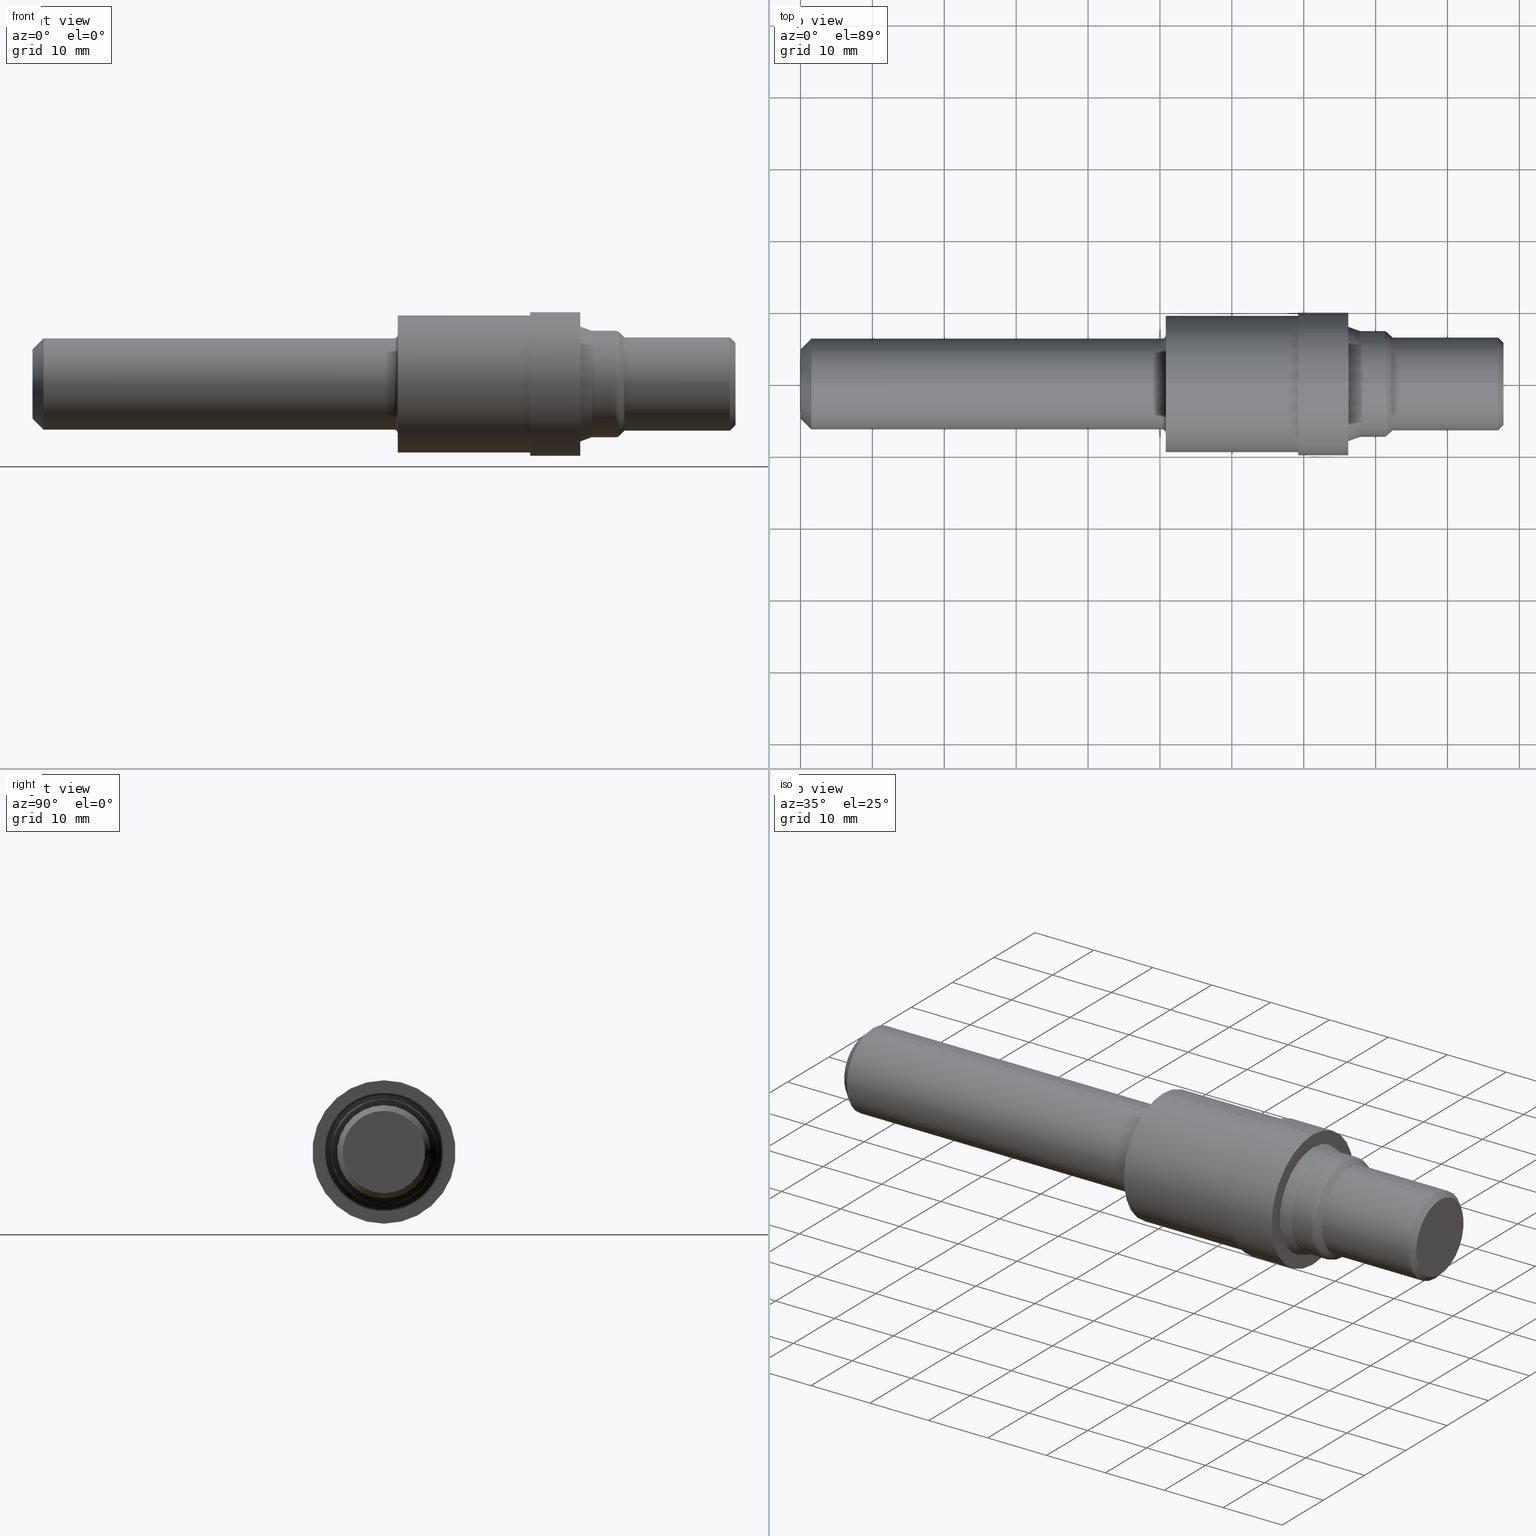
[diagram: canonical four-view strip — front | top / right | iso, engineering-drawing reading convention]
A machine part, canonical four-view strip (front | top / right | iso — engineering-drawing reading convention). The complete STEP part file that produces these views, byte-faithful:
ISO-10303-21;
HEADER;
FILE_DESCRIPTION (( 'STEP AP214' ),
    '1' );
FILE_NAME ('RPT-8 Solid Model.STEP',
    '2018-12-12T20:45:45',
    ( '' ),
    ( '' ),
    'SwSTEP 2.0',
    'SolidWorks 2018',
    '' );
FILE_SCHEMA (( 'AUTOMOTIVE_DESIGN' ));
ENDSEC;

DATA;
#1 = CONICAL_SURFACE ( 'NONE', #225, 0.2556499999999999884, 0.7853981633974528309 ) ;
#2 =( GEOMETRIC_REPRESENTATION_CONTEXT ( 3 ) GLOBAL_UNCERTAINTY_ASSIGNED_CONTEXT ( ( #572 ) ) GLOBAL_UNIT_ASSIGNED_CONTEXT ( ( #618, #619, #701 ) ) REPRESENTATION_CONTEXT ( 'NONE', 'WORKASPACE' ) );
#3 = ADVANCED_FACE ( 'NONE', ( #206 ), #17, .T. ) ;
#4 = CARTESIAN_POINT ( 'NONE',  ( 3.820000000000000284, 0.0000000000000000000, 0.0000000000000000000 ) ) ;
#5 = FILL_AREA_STYLE ('',( #286 ) ) ;
#6 = EDGE_CURVE ( 'NONE', #738, #306, #204, .T. ) ;
#7 = AXIS2_PLACEMENT_3D ( 'NONE', #464, #743, #715 ) ;
#8 = CARTESIAN_POINT ( 'NONE',  ( 0.0000000000000000000, 0.0000000000000000000, 0.3926499999999999990 ) ) ;
#9 = AXIS2_PLACEMENT_3D ( 'NONE', #249, #145, #134 ) ;
#10 = CONICAL_SURFACE ( 'NONE', #215, 0.2256499999999999340, 0.7853981633974500554 ) ;
#11 =( CONVERSION_BASED_UNIT ( 'INCH', #220 ) LENGTH_UNIT ( ) NAMED_UNIT ( #87 ) );
#12 = FACE_OUTER_BOUND ( 'NONE', #271, .T. ) ;
#13 = EDGE_CURVE ( 'NONE', #306, #738, #205, .T. ) ;
#14 = DIRECTION ( 'NONE',  ( 0.0000000000000000000, 0.0000000000000000000, 1.000000000000000000 ) ) ;
#15 = DIRECTION ( 'NONE',  ( 0.0000000000000000000, 0.0000000000000000000, 1.000000000000000000 ) ) ;
#16 = DIRECTION ( 'NONE',  ( -1.000000000000000000, -0.0000000000000000000, -0.0000000000000000000 ) ) ;
#17 = TOROIDAL_SURFACE ( 'NONE', #39, 0.2614000000000000212, 0.02999999999999991909 ) ;
#18 = ADVANCED_FACE ( 'NONE', ( #202 ), #190, .T. ) ;
#19 = TOROIDAL_SURFACE ( 'NONE', #210, 0.2614000000000000212, 0.02999999999999991909 ) ;
#20 = CONICAL_SURFACE ( 'NONE', #651, 0.2913999999999999924, 0.3577924966588383326 ) ;
#21 = CARTESIAN_POINT ( 'NONE',  ( 3.193073593128807008, 0.0000000000000000000, 0.0000000000000000000 ) ) ;
#22 = CYLINDRICAL_SURFACE ( 'NONE', #578, 0.2556499999999999884 ) ;
#23 = CARTESIAN_POINT ( 'NONE',  ( 3.000000000000000444, 0.0000000000000000000, 0.3926499999999999990 ) ) ;
#24 = ADVANCED_FACE ( 'NONE', ( #200 ), #390, .T. ) ;
#25 = ADVANCED_FACE ( 'NONE', ( #192 ), #184, .T. ) ;
#26 = CARTESIAN_POINT ( 'NONE',  ( 3.000000000000000444, 0.3926499999999999990, 0.0000000000000000000 ) ) ;
#27 = DIRECTION ( 'NONE',  ( 0.0000000000000000000, 0.0000000000000000000, 1.000000000000000000 ) ) ;
#28 = EDGE_CURVE ( 'NONE', #451, #674, #189, .T. ) ;
#29 = EDGE_CURVE ( 'NONE', #636, #583, #391, .T. ) ;
#30 = CIRCLE ( 'NONE', #411, 0.2826132034355963718 ) ;
#31 = CIRCLE ( 'NONE', #234, 0.2913999999999999924 ) ;
#32 = DIRECTION ( 'NONE',  ( 0.0000000000000000000, 0.0000000000000000000, 1.000000000000000000 ) ) ;
#33 = PLANE ( 'NONE',  #594 ) ;
#34 = CIRCLE ( 'NONE', #150, 0.3147677924678004002 ) ;
#35 = ORIENTED_EDGE ( 'NONE', *, *, #28, .T. ) ;
#36 = DIRECTION ( 'NONE',  ( 0.0000000000000000000, 0.0000000000000000000, 1.000000000000000000 ) ) ;
#37 = DIRECTION ( 'NONE',  ( -1.000000000000000000, -0.0000000000000000000, -0.0000000000000000000 ) ) ;
#38 = DIMENSIONAL_EXPONENTS ( 1.000000000000000000, 0.0000000000000000000, 0.0000000000000000000, 0.0000000000000000000, 0.0000000000000000000, 0.0000000000000000000, 0.0000000000000000000 ) ;
#39 = AXIS2_PLACEMENT_3D ( 'NONE', #21, #218, #335 ) ;
#40 = FACE_OUTER_BOUND ( 'NONE', #320, .T. ) ;
#41 = LINE ( 'NONE', #453, #47 ) ;
#42 = FACE_OUTER_BOUND ( 'NONE', #604, .T. ) ;
#43 = DIRECTION ( 'NONE',  ( 0.0000000000000000000, 0.0000000000000000000, -1.000000000000000000 ) ) ;
#44 = FACE_OUTER_BOUND ( 'NONE', #707, .T. ) ;
#45 = DIRECTION ( 'NONE',  ( -0.9366721892483974576, 0.0000000000000000000, 0.3502073812594680979 ) ) ;
#46 = CIRCLE ( 'NONE', #705, 0.2556499999999999884 ) ;
#47 = VECTOR ( 'NONE', #175, 39.37007874015748143 ) ;
#48 = FACE_OUTER_BOUND ( 'NONE', #537, .T. ) ;
#49 = LENGTH_MEASURE_WITH_UNIT ( LENGTH_MEASURE( 0.02539999999999999897 ), #107 );
#50 = DIRECTION ( 'NONE',  ( -0.0000000000000000000, 0.0000000000000000000, 1.000000000000000000 ) ) ;
#51 = CYLINDRICAL_SURFACE ( 'NONE', #653, 0.2498499999999999888 ) ;
#52 = FACE_OUTER_BOUND ( 'NONE', #473, .T. ) ;
#53 = APPLICATION_CONTEXT ( 'automotive_design' ) ;
#54 = LINE ( 'NONE', #354, #334 ) ;
#55 = CIRCLE ( 'NONE', #362, 0.01999999999999999001 ) ;
#56 = DIRECTION ( 'NONE',  ( -1.000000000000000000, -0.0000000000000000000, -0.0000000000000000000 ) ) ;
#57 = DIRECTION ( 'NONE',  ( 0.0000000000000000000, 0.0000000000000000000, 1.000000000000000000 ) ) ;
#58 = DIRECTION ( 'NONE',  ( -1.000000000000000000, -0.0000000000000000000, -0.0000000000000000000 ) ) ;
#59 = DIRECTION ( 'NONE',  ( 0.0000000000000000000, 0.0000000000000000000, 1.000000000000000000 ) ) ;
#60 = DIRECTION ( 'NONE',  ( 0.0000000000000000000, 0.0000000000000000000, 1.000000000000000000 ) ) ;
#61 = DIRECTION ( 'NONE',  ( -1.000000000000000000, -0.0000000000000000000, -0.0000000000000000000 ) ) ;
#62 = CIRCLE ( 'NONE', #7, 0.3926499999999999990 ) ;
#63 = CARTESIAN_POINT ( 'NONE',  ( 2.000000000000000000, 0.0000000000000000000, 0.0000000000000000000 ) ) ;
#64 = CARTESIAN_POINT ( 'NONE',  ( 2.725000000000000089, 0.0000000000000000000, 0.3750000000000000555 ) ) ;
#65 = VECTOR ( 'NONE', #454, 39.37007874015748143 ) ;
#66 = DIRECTION ( 'NONE',  ( 0.0000000000000000000, 0.0000000000000000000, 1.000000000000000000 ) ) ;
#67 = FACE_OUTER_BOUND ( 'NONE', #606, .T. ) ;
#68 = ADVANCED_FACE ( 'NONE', ( #380 ), #183, .F. ) ;
#69 = ADVANCED_FACE ( 'NONE', ( #174 ), #163, .T. ) ;
#70 =( GEOMETRIC_REPRESENTATION_CONTEXT ( 3 ) GLOBAL_UNCERTAINTY_ASSIGNED_CONTEXT ( ( #106 ) ) GLOBAL_UNIT_ASSIGNED_CONTEXT ( ( #630, #410, #130 ) ) REPRESENTATION_CONTEXT ( 'NONE', 'WORKASPACE' ) );
#71 = CARTESIAN_POINT ( 'NONE',  ( 0.05999999999999999778, 3.059780027669661931E-17, 0.2498499999999999888 ) ) ;
#72 = ADVANCED_FACE ( 'NONE', ( #182 ), #161, .T. ) ;
#73 = DIRECTION ( 'NONE',  ( 0.0000000000000000000, 0.0000000000000000000, 1.000000000000000000 ) ) ;
#74 = DIRECTION ( 'NONE',  ( -1.000000000000000000, -0.0000000000000000000, -0.0000000000000000000 ) ) ;
#75 = AXIS2_PLACEMENT_3D ( 'NONE', #118, #588, #186 ) ;
#76 = ADVANCED_FACE ( 'NONE', ( #171, #155 ), #33, .F. ) ;
#77 = CARTESIAN_POINT ( 'NONE',  ( 3.193073593128807008, 3.568620772715386493E-17, -0.2913999999999999369 ) ) ;
#78 = LINE ( 'NONE', #154, #65 ) ;
#79 = DIRECTION ( 'NONE',  ( 0.0000000000000000000, 0.0000000000000000000, -1.000000000000000000 ) ) ;
#80 = CIRCLE ( 'NONE', #673, 0.2498500000000000443 ) ;
#81 = CARTESIAN_POINT ( 'NONE',  ( 1.979999999999999982, 0.0000000000000000000, 0.0000000000000000000 ) ) ;
#82 = DIRECTION ( 'NONE',  ( 0.0000000000000000000, 0.0000000000000000000, -1.000000000000000000 ) ) ;
#83 = VECTOR ( 'NONE', #513, 39.37007874015748143 ) ;
#84 = DIRECTION ( 'NONE',  ( 0.0000000000000000000, 0.0000000000000000000, 1.000000000000000000 ) ) ;
#85 = AXIS2_PLACEMENT_3D ( 'NONE', #611, #561, #388 ) ;
#86 = LINE ( 'NONE', #104, #124 ) ;
#87 = DIMENSIONAL_EXPONENTS ( 1.000000000000000000, 0.0000000000000000000, 0.0000000000000000000, 0.0000000000000000000, 0.0000000000000000000, 0.0000000000000000000, 0.0000000000000000000 ) ;
#88 = EDGE_CURVE ( 'NONE', #738, #451, #153, .T. ) ;
#89 = DIRECTION ( 'NONE',  ( -1.000000000000000000, -0.0000000000000000000, -0.0000000000000000000 ) ) ;
#90 = AXIS2_PLACEMENT_3D ( 'NONE', #720, #269, #347 ) ;
#91 = AXIS2_PLACEMENT_3D ( 'NONE', #484, #497, #480 ) ;
#92 = LINE ( 'NONE', #71, #101 ) ;
#93 = CIRCLE ( 'NONE', #472, 0.1898500000000002408 ) ;
#94 = LINE ( 'NONE', #196, #112 ) ;
#95 = DIRECTION ( 'NONE',  ( -0.0000000000000000000, 1.000000000000000000, 1.224646799147353207E-16 ) ) ;
#96 = CYLINDRICAL_SURFACE ( 'NONE', #395, 0.2498499999999999888 ) ;
#97 = CARTESIAN_POINT ( 'NONE',  ( 0.0000000000000000000, 0.0000000000000000000, 0.0000000000000000000 ) ) ;
#98 = EDGE_CURVE ( 'NONE', #242, #254, #199, .T. ) ;
#99 = DIRECTION ( 'NONE',  ( -1.000000000000000000, -0.0000000000000000000, -0.0000000000000000000 ) ) ;
#100 = AXIS2_PLACEMENT_3D ( 'NONE', #387, #603, #626 ) ;
#101 = VECTOR ( 'NONE', #434, 39.37007874015748143 ) ;
#102 = CIRCLE ( 'NONE', #157, 0.2698499999999999788 ) ;
#103 = PRESENTATION_STYLE_ASSIGNMENT (( #403 ) ) ;
#104 = CARTESIAN_POINT ( 'NONE',  ( 0.0000000000000000000, 3.059780027669661931E-17, -0.2498499999999999888 ) ) ;
#105 = DIRECTION ( 'NONE',  ( -0.0000000000000000000, 0.0000000000000000000, 1.000000000000000000 ) ) ;
#106 = UNCERTAINTY_MEASURE_WITH_UNIT (LENGTH_MEASURE( 1.000000000000000082E-05 ), #630, 'distance_accuracy_value', 'NONE');
#107 =( LENGTH_UNIT ( ) NAMED_UNIT ( * ) SI_UNIT ( $, .METRE. ) );
#108 = FACE_OUTER_BOUND ( 'NONE', #370, .T. ) ;
#109 = VECTOR ( 'NONE', #292, 39.37007874015748143 ) ;
#110 = CARTESIAN_POINT ( 'NONE',  ( 0.0000000000000000000, 4.808575656852082259E-17, -0.3926499999999999990 ) ) ;
#111 = DIRECTION ( 'NONE',  ( -1.000000000000000000, -0.0000000000000000000, -0.0000000000000000000 ) ) ;
#112 = VECTOR ( 'NONE', #731, 39.37007874015748143 ) ;
#113 = DIRECTION ( 'NONE',  ( -1.000000000000000000, -0.0000000000000000000, -0.0000000000000000000 ) ) ;
#114 = EDGE_CURVE ( 'NONE', #351, #216, #176, .T. ) ;
#115 = EDGE_CURVE ( 'NONE', #548, #398, #152, .T. ) ;
#116 = DIRECTION ( 'NONE',  ( -1.000000000000000000, -0.0000000000000000000, -0.0000000000000000000 ) ) ;
#117 = FACE_OUTER_BOUND ( 'NONE', #241, .T. ) ;
#118 = CARTESIAN_POINT ( 'NONE',  ( 1.979999999999999982, 0.0000000000000000000, 0.2698499999999999788 ) ) ;
#119 = CYLINDRICAL_SURFACE ( 'NONE', #728, 0.3750000000000000555 ) ;
#120 = CIRCLE ( 'NONE', #650, 0.2913999999999999924 ) ;
#121 = EDGE_CURVE ( 'NONE', #451, #740, #151, .T. ) ;
#122 = PLANE ( 'NONE',  #717 ) ;
#123 = DIRECTION ( 'NONE',  ( 0.0000000000000000000, 0.0000000000000000000, 1.000000000000000000 ) ) ;
#124 = VECTOR ( 'NONE', #111, 39.37007874015748143 ) ;
#125 = FACE_BOUND ( 'NONE', #577, .T. ) ;
#126 = CARTESIAN_POINT ( 'NONE',  ( 3.193073593128807008, 0.0000000000000000000, 0.0000000000000000000 ) ) ;
#127 = ORIENTED_EDGE ( 'NONE', *, *, #146, .F. ) ;
#128 = LINE ( 'NONE', #169, #109 ) ;
#129 = FACE_BOUND ( 'NONE', #656, .T. ) ;
#130 =( NAMED_UNIT ( * ) SI_UNIT ( $, .STERADIAN. ) SOLID_ANGLE_UNIT ( ) );
#131 = PLANE ( 'NONE',  #267 ) ;
#132 = ADVANCED_FACE ( 'NONE', ( #141 ), #119, .T. ) ;
#133 = SURFACE_STYLE_FILL_AREA ( #584 ) ;
#134 = DIRECTION ( 'NONE',  ( 1.000000000000000000, 0.0000000000000000000, 0.0000000000000000000 ) ) ;
#135 = DIMENSIONAL_EXPONENTS ( 1.000000000000000000, 0.0000000000000000000, 0.0000000000000000000, 0.0000000000000000000, 0.0000000000000000000, 0.0000000000000000000, 0.0000000000000000000 ) ;
#136 = AXIS2_PLACEMENT_3D ( 'NONE', #565, #58, #123 ) ;
#137 = AXIS2_PLACEMENT_3D ( 'NONE', #364, #408, #404 ) ;
#138 = PLANE ( 'NONE',  #620 ) ;
#139 = DIRECTION ( 'NONE',  ( -1.000000000000000000, -0.0000000000000000000, -0.0000000000000000000 ) ) ;
#140 = VECTOR ( 'NONE', #56, 39.37007874015748143 ) ;
#141 = FACE_OUTER_BOUND ( 'NONE', #332, .T. ) ;
#142 = CIRCLE ( 'NONE', #601, 0.1898500000000002408 ) ;
#143 = COLOUR_RGB ( '',0.7529411764705882248, 0.7529411764705882248, 0.7529411764705882248 ) ;
#144 = DIRECTION ( 'NONE',  ( 0.0000000000000000000, 0.0000000000000000000, 1.000000000000000000 ) ) ;
#145 = DIRECTION ( 'NONE',  ( 0.0000000000000000000, 0.0000000000000000000, 1.000000000000000000 ) ) ;
#146 = EDGE_CURVE ( 'NONE', #433, #583, #120, .T. ) ;
#147 = VECTOR ( 'NONE', #156, 39.37007874015748143 ) ;
#148 = DIRECTION ( 'NONE',  ( -1.000000000000000000, -0.0000000000000000000, -0.0000000000000000000 ) ) ;
#149 = ORIENTED_EDGE ( 'NONE', *, *, #389, .F. ) ;
#150 = AXIS2_PLACEMENT_3D ( 'NONE', #659, #568, #709 ) ;
#151 = LINE ( 'NONE', #315, #140 ) ;
#152 = CIRCLE ( 'NONE', #677, 0.3750000000000000555 ) ;
#153 = LINE ( 'NONE', #302, #162 ) ;
#154 = CARTESIAN_POINT ( 'NONE',  ( 0.0000000000000000000, 0.0000000000000000000, 0.2556499999999999884 ) ) ;
#155 = FACE_BOUND ( 'NONE', #724, .T. ) ;
#156 = DIRECTION ( 'NONE',  ( -1.000000000000000000, -0.0000000000000000000, -0.0000000000000000000 ) ) ;
#157 = AXIS2_PLACEMENT_3D ( 'NONE', #446, #165, #378 ) ;
#158 = DIRECTION ( 'NONE',  ( -1.000000000000000000, -0.0000000000000000000, -0.0000000000000000000 ) ) ;
#159 = MECHANICAL_DESIGN_GEOMETRIC_PRESENTATION_REPRESENTATION (  '', ( #551 ), #2 ) ;
#160 = DIRECTION ( 'NONE',  ( 0.0000000000000000000, 0.0000000000000000000, 1.000000000000000000 ) ) ;
#161 = CYLINDRICAL_SURFACE ( 'NONE', #91, 0.2913999999999999924 ) ;
#162 = VECTOR ( 'NONE', #301, 39.37007874015748854 ) ;
#163 = CYLINDRICAL_SURFACE ( 'NONE', #670, 0.2913999999999999924 ) ;
#164 = DIRECTION ( 'NONE',  ( 0.0000000000000000000, 0.0000000000000000000, 1.000000000000000000 ) ) ;
#165 = DIRECTION ( 'NONE',  ( -1.000000000000000000, -0.0000000000000000000, -0.0000000000000000000 ) ) ;
#166 = DIRECTION ( 'NONE',  ( -1.000000000000000000, -0.0000000000000000000, -0.0000000000000000000 ) ) ;
#167 = CARTESIAN_POINT ( 'NONE',  ( 3.193073593128807008, 0.0000000000000000000, 0.0000000000000000000 ) ) ;
#168 = EDGE_CURVE ( 'NONE', #440, #697, #142, .T. ) ;
#169 = CARTESIAN_POINT ( 'NONE',  ( 0.0000000000000000000, 0.0000000000000000000, 0.2498499999999999888 ) ) ;
#170 = EDGE_CURVE ( 'NONE', #297, #676, #128, .T. ) ;
#171 = FACE_OUTER_BOUND ( 'NONE', #414, .T. ) ;
#172 = CARTESIAN_POINT ( 'NONE',  ( 2.725000000000000089, 0.0000000000000000000, 0.3926499999999999990 ) ) ;
#173 = AXIS2_PLACEMENT_3D ( 'NONE', #239, #741, #508 ) ;
#174 = FACE_OUTER_BOUND ( 'NONE', #562, .T. ) ;
#175 = DIRECTION ( 'NONE',  ( -0.7071067811865443531, 0.0000000000000000000, 0.7071067811865506814 ) ) ;
#176 = CIRCLE ( 'NONE', #491, 0.3750000000000000555 ) ;
#177 = FILL_AREA_STYLE_COLOUR ( '', #531 ) ;
#178 = VECTOR ( 'NONE', #377, 39.37007874015748143 ) ;
#179 = CARTESIAN_POINT ( 'NONE',  ( 0.0000000000000000000, 0.0000000000000000000, 0.0000000000000000000 ) ) ;
#180 =( GEOMETRIC_REPRESENTATION_CONTEXT ( 3 ) GLOBAL_UNCERTAINTY_ASSIGNED_CONTEXT ( ( #522 ) ) GLOBAL_UNIT_ASSIGNED_CONTEXT ( ( #11, #231, #349 ) ) REPRESENTATION_CONTEXT ( 'NONE', 'WORKASPACE' ) );
#181 = CARTESIAN_POINT ( 'NONE',  ( 3.820000000000000284, 0.0000000000000000000, 0.0000000000000000000 ) ) ;
#182 = FACE_OUTER_BOUND ( 'NONE', #493, .T. ) ;
#183 = TOROIDAL_SURFACE ( 'NONE', #664, 0.2698499999999999788, 0.02000000000000000736 ) ;
#184 = CYLINDRICAL_SURFACE ( 'NONE', #567, 0.3926499999999999990 ) ;
#185 = FACE_OUTER_BOUND ( 'NONE', #621, .T. ) ;
#186 = DIRECTION ( 'NONE',  ( 0.0000000000000000000, 0.0000000000000000000, -1.000000000000000000 ) ) ;
#187 = DIRECTION ( 'NONE',  ( 0.0000000000000000000, 0.0000000000000000000, 1.000000000000000000 ) ) ;
#188 = ADVANCED_FACE ( 'NONE', ( #129, #117 ), #138, .F. ) ;
#189 = CIRCLE ( 'NONE', #368, 0.2556499999999999884 ) ;
#190 = CONICAL_SURFACE ( 'NONE', #559, 0.2913999999999999924, 0.3577924966588383326 ) ;
#191 = ADVANCED_FACE ( 'NONE', ( #108 ), #131, .F. ) ;
#192 = FACE_OUTER_BOUND ( 'NONE', #524, .T. ) ;
#193 = APPLICATION_PROTOCOL_DEFINITION ( 'draft international standard', 'automotive_design', 1998, #53 ) ;
#194 = CARTESIAN_POINT ( 'NONE',  ( 3.000000000000000444, 0.0000000000000000000, 0.0000000000000000000 ) ) ;
#195 = FACE_OUTER_BOUND ( 'NONE', #258, .T. ) ;
#196 = CARTESIAN_POINT ( 'NONE',  ( 3.062500000000000444, 3.568620772715387109E-17, -0.2913999999999999924 ) ) ;
#197 = AXIS2_PLACEMENT_3D ( 'NONE', #576, #501, #232 ) ;
#198 = EDGE_CURVE ( 'NONE', #440, #676, #92, .T. ) ;
#199 = CIRCLE ( 'NONE', #612, 0.2913999999999999924 ) ;
#200 = FACE_OUTER_BOUND ( 'NONE', #547, .T. ) ;
#201 = EDGE_CURVE ( 'NONE', #697, #440, #93, .T. ) ;
#202 = FACE_OUTER_BOUND ( 'NONE', #640, .T. ) ;
#203 = CARTESIAN_POINT ( 'NONE',  ( 3.820000000000000284, 0.0000000000000000000, 0.2556499999999999884 ) ) ;
#204 = CIRCLE ( 'NONE', #251, 0.2256499999999999340 ) ;
#205 = CIRCLE ( 'NONE', #644, 0.2256499999999999340 ) ;
#206 = FACE_OUTER_BOUND ( 'NONE', #543, .T. ) ;
#207 = CARTESIAN_POINT ( 'NONE',  ( 2.725000000000000089, 0.0000000000000000000, 0.0000000000000000000 ) ) ;
#208 = EDGE_CURVE ( 'NONE', #297, #462, #80, .T. ) ;
#209 = DIRECTION ( 'NONE',  ( -1.000000000000000000, -0.0000000000000000000, -0.0000000000000000000 ) ) ;
#210 = AXIS2_PLACEMENT_3D ( 'NONE', #126, #148, #540 ) ;
#211 = CIRCLE ( 'NONE', #268, 0.2498500000000000443 ) ;
#212 = SURFACE_STYLE_FILL_AREA ( #5 ) ;
#213 = AXIS2_PLACEMENT_3D ( 'NONE', #428, #641, #59 ) ;
#214 = DIRECTION ( 'NONE',  ( 0.0000000000000000000, 0.0000000000000000000, 1.000000000000000000 ) ) ;
#215 = AXIS2_PLACEMENT_3D ( 'NONE', #341, #235, #60 ) ;
#216 = VERTEX_POINT ( 'NONE', #507 ) ;
#217 = ORIENTED_EDGE ( 'NONE', *, *, #445, .F. ) ;
#218 = DIRECTION ( 'NONE',  ( -1.000000000000000000, -0.0000000000000000000, -0.0000000000000000000 ) ) ;
#219 = ADVANCED_FACE ( 'NONE', ( #67 ), #51, .T. ) ;
#220 = LENGTH_MEASURE_WITH_UNIT ( LENGTH_MEASURE( 0.02539999999999999897 ), #475 );
#221 = CARTESIAN_POINT ( 'NONE',  ( 3.850000000000000089, 0.0000000000000000000, 0.0000000000000000000 ) ) ;
#222 = CARTESIAN_POINT ( 'NONE',  ( 0.05999999999999999778, 0.0000000000000000000, 0.0000000000000000000 ) ) ;
#223 = EDGE_CURVE ( 'NONE', #674, #614, #78, .T. ) ;
#224 = CARTESIAN_POINT ( 'NONE',  ( 1.979999999999999982, 3.304709387499132646E-17, -0.2698499999999999788 ) ) ;
#225 = AXIS2_PLACEMENT_3D ( 'NONE', #718, #61, #487 ) ;
#226 = AXIS2_PLACEMENT_3D ( 'NONE', #358, #392, #699 ) ;
#227 = CARTESIAN_POINT ( 'NONE',  ( 3.850000000000000089, 0.0000000000000000000, 0.0000000000000000000 ) ) ;
#228 = ORIENTED_EDGE ( 'NONE', *, *, #115, .F. ) ;
#229 = ORIENTED_EDGE ( 'NONE', *, *, #625, .T. ) ;
#230 = ADVANCED_BREP_SHAPE_REPRESENTATION ( 'RPT-8 Solid Model', ( #344, #9 ), #180 ) ;
#231 =( NAMED_UNIT ( * ) PLANE_ANGLE_UNIT ( ) SI_UNIT ( $, .RADIAN. ) );
#232 = DIRECTION ( 'NONE',  ( 0.0000000000000000000, 0.0000000000000000000, 1.000000000000000000 ) ) ;
#233 = VERTEX_POINT ( 'NONE', #525 ) ;
#234 = AXIS2_PLACEMENT_3D ( 'NONE', #430, #343, #455 ) ;
#235 = DIRECTION ( 'NONE',  ( -1.000000000000000000, -0.0000000000000000000, -0.0000000000000000000 ) ) ;
#236 = CARTESIAN_POINT ( 'NONE',  ( 3.000000000000000444, 3.854793695203700741E-17, -0.3147677924678004002 ) ) ;
#237 = ORIENTED_EDGE ( 'NONE', *, *, #198, .F. ) ;
#238 = DIRECTION ( 'NONE',  ( -1.000000000000000000, -0.0000000000000000000, -0.0000000000000000000 ) ) ;
#239 = CARTESIAN_POINT ( 'NONE',  ( 3.241249999999999964, 0.0000000000000000000, 0.0000000000000000000 ) ) ;
#240 = EDGE_CURVE ( 'NONE', #288, #582, #102, .T. ) ;
#241 = EDGE_LOOP ( 'NONE', ( #442, #479 ) ) ;
#242 = VERTEX_POINT ( 'NONE', #742 ) ;
#243 = ADVANCED_FACE ( 'NONE', ( #52 ), #20, .T. ) ;
#244 = CARTESIAN_POINT ( 'NONE',  ( 0.05999999999999999778, 0.0000000000000000000, -0.2498499999999999888 ) ) ;
#245 = CARTESIAN_POINT ( 'NONE',  ( 1.979999999999999982, 0.0000000000000000000, 0.0000000000000000000 ) ) ;
#246 = LINE ( 'NONE', #255, #147 ) ;
#247 = DIRECTION ( 'NONE',  ( -1.000000000000000000, -0.0000000000000000000, -0.0000000000000000000 ) ) ;
#248 = AXIS2_PLACEMENT_3D ( 'NONE', #4, #298, #580 ) ;
#249 = CARTESIAN_POINT ( 'NONE',  ( 0.0000000000000000000, 0.0000000000000000000, 0.0000000000000000000 ) ) ;
#250 = PRODUCT_RELATED_PRODUCT_CATEGORY ( 'part', '', ( #365 ) ) ;
#251 = AXIS2_PLACEMENT_3D ( 'NONE', #227, #393, #32 ) ;
#252 = DIRECTION ( 'NONE',  ( 0.0000000000000000000, 0.0000000000000000000, 1.000000000000000000 ) ) ;
#253 = ORIENTED_EDGE ( 'NONE', *, *, #223, .T. ) ;
#254 = VERTEX_POINT ( 'NONE', #353 ) ;
#255 = CARTESIAN_POINT ( 'NONE',  ( 0.0000000000000000000, 4.592425496802575451E-17, -0.3750000000000000555 ) ) ;
#256 = DIRECTION ( 'NONE',  ( 0.0000000000000000000, 0.0000000000000000000, 1.000000000000000000 ) ) ;
#257 = AXIS2_PLACEMENT_3D ( 'NONE', #397, #95, #401 ) ;
#258 = EDGE_LOOP ( 'NONE', ( #549, #339, #308, #337 ) ) ;
#259 = ORIENTED_EDGE ( 'NONE', *, *, #571, .F. ) ;
#260 = ORIENTED_EDGE ( 'NONE', *, *, #6, .F. ) ;
#261 = EDGE_CURVE ( 'NONE', #583, #433, #31, .T. ) ;
#262 = ORIENTED_EDGE ( 'NONE', *, *, #456, .F. ) ;
#263 = CARTESIAN_POINT ( 'NONE',  ( 3.214286796564403748, 0.0000000000000000000, 0.0000000000000000000 ) ) ;
#264 = ADVANCED_FACE ( 'NONE', ( #42 ), #10, .T. ) ;
#265 = CIRCLE ( 'NONE', #412, 0.2826132034355963718 ) ;
#266 = DIRECTION ( 'NONE',  ( 0.0000000000000000000, 0.0000000000000000000, 1.000000000000000000 ) ) ;
#267 = AXIS2_PLACEMENT_3D ( 'NONE', #737, #486, #79 ) ;
#268 = AXIS2_PLACEMENT_3D ( 'NONE', #438, #381, #489 ) ;
#269 = DIRECTION ( 'NONE',  ( -1.000000000000000000, -0.0000000000000000000, -0.0000000000000000000 ) ) ;
#270 = CARTESIAN_POINT ( 'NONE',  ( 3.000000000000000444, 4.808575656852082259E-17, -0.3926499999999999990 ) ) ;
#271 = EDGE_LOOP ( 'NONE', ( #596, #700, #511, #713 ) ) ;
#272 = ORIENTED_EDGE ( 'NONE', *, *, #729, .T. ) ;
#273 = ORIENTED_EDGE ( 'NONE', *, *, #375, .T. ) ;
#274 = FACE_OUTER_BOUND ( 'NONE', #652, .T. ) ;
#275 = AXIS2_PLACEMENT_3D ( 'NONE', #419, #654, #66 ) ;
#276 = PRODUCT_DEFINITION_FORMATION_WITH_SPECIFIED_SOURCE ( 'ANY', '', #365, .NOT_KNOWN. ) ;
#277 = CARTESIAN_POINT ( 'NONE',  ( 3.062500000000000444, 0.0000000000000000000, 0.0000000000000000000 ) ) ;
#278 = ORIENTED_EDGE ( 'NONE', *, *, #374, .F. ) ;
#279 = ORIENTED_EDGE ( 'NONE', *, *, #515, .F. ) ;
#280 = PRODUCT_DEFINITION ( 'UNKNOWN', '', #276, #340 ) ;
#281 = CARTESIAN_POINT ( 'NONE',  ( 0.0000000000000000000, 0.0000000000000000000, 0.0000000000000000000 ) ) ;
#282 = MECHANICAL_DESIGN_GEOMETRIC_PRESENTATION_REPRESENTATION (  '', ( #316 ), #70 ) ;
#283 = DIRECTION ( 'NONE',  ( -1.000000000000000000, -0.0000000000000000000, -0.0000000000000000000 ) ) ;
#284 = CARTESIAN_POINT ( 'NONE',  ( 0.0000000000000000000, 2.692385987925457090E-17, 0.1898500000000002408 ) ) ;
#285 = ORIENTED_EDGE ( 'NONE', *, *, #29, .F. ) ;
#286 = FILL_AREA_STYLE_COLOUR ( '', #143 ) ;
#287 = ORIENTED_EDGE ( 'NONE', *, *, #240, .F. ) ;
#288 = VERTEX_POINT ( 'NONE', #439 ) ;
#289 = ADVANCED_FACE ( 'NONE', ( #12 ), #1, .T. ) ;
#290 = CONICAL_SURFACE ( 'NONE', #336, 0.2498499999999999888, 0.7853981633974463916 ) ;
#291 = CYLINDRICAL_SURFACE ( 'NONE', #226, 0.2556499999999999884 ) ;
#292 = DIRECTION ( 'NONE',  ( -1.000000000000000000, -0.0000000000000000000, -0.0000000000000000000 ) ) ;
#293 = ADVANCED_FACE ( 'NONE', ( #40 ), #19, .T. ) ;
#294 = EDGE_CURVE ( 'NONE', #614, #527, #41, .T. ) ;
#295 = PRESENTATION_LAYER_ASSIGNMENT (  '', '', ( #316 ) ) ;
#296 = DIRECTION ( 'NONE',  ( -1.000000000000000000, -0.0000000000000000000, -0.0000000000000000000 ) ) ;
#297 = VERTEX_POINT ( 'NONE', #450 ) ;
#298 = DIRECTION ( 'NONE',  ( -1.000000000000000000, -0.0000000000000000000, -0.0000000000000000000 ) ) ;
#299 = DIRECTION ( 'NONE',  ( -1.000000000000000000, -0.0000000000000000000, -0.0000000000000000000 ) ) ;
#300 = VERTEX_POINT ( 'NONE', #270 ) ;
#301 = DIRECTION ( 'NONE',  ( -0.7071067811865462405, 8.659560562354947649E-17, -0.7071067811865486830 ) ) ;
#302 = CARTESIAN_POINT ( 'NONE',  ( 3.850000000000000089, 2.763415502276001693E-17, -0.2256499999999999340 ) ) ;
#303 = EDGE_CURVE ( 'NONE', #740, #636, #373, .T. ) ;
#304 = DIRECTION ( 'NONE',  ( -1.000000000000000000, -0.0000000000000000000, -0.0000000000000000000 ) ) ;
#305 = DIRECTION ( 'NONE',  ( 0.0000000000000000000, 0.0000000000000000000, 1.000000000000000000 ) ) ;
#306 = VERTEX_POINT ( 'NONE', #708 ) ;
#307 = ORIENTED_EDGE ( 'NONE', *, *, #686, .F. ) ;
#308 = ORIENTED_EDGE ( 'NONE', *, *, #170, .T. ) ;
#309 = VECTOR ( 'NONE', #633, 39.37007874015748854 ) ;
#310 = EDGE_CURVE ( 'NONE', #614, #740, #46, .T. ) ;
#311 = FACE_OUTER_BOUND ( 'NONE', #622, .T. ) ;
#312 = DIRECTION ( 'NONE',  ( 0.0000000000000000000, 0.0000000000000000000, 1.000000000000000000 ) ) ;
#313 = CARTESIAN_POINT ( 'NONE',  ( 2.725000000000000089, 0.0000000000000000000, 0.0000000000000000000 ) ) ;
#314 = DIRECTION ( 'NONE',  ( 0.0000000000000000000, 0.0000000000000000000, -1.000000000000000000 ) ) ;
#315 = CARTESIAN_POINT ( 'NONE',  ( 0.0000000000000000000, 3.130809542020208383E-17, -0.2556499999999999884 ) ) ;
#316 = STYLED_ITEM ( 'NONE', ( #103 ), #230 ) ;
#317 = ORIENTED_EDGE ( 'NONE', *, *, #389, .T. ) ;
#318 = DIRECTION ( 'NONE',  ( 0.0000000000000000000, 0.0000000000000000000, 1.000000000000000000 ) ) ;
#319 = EDGE_LOOP ( 'NONE', ( #554, #326, #482, #449 ) ) ;
#320 = EDGE_LOOP ( 'NONE', ( #518, #458, #127, #396 ) ) ;
#321 = ADVANCED_FACE ( 'NONE', ( #185 ), #290, .T. ) ;
#322 = AXIS2_PLACEMENT_3D ( 'NONE', #586, #113, #252 ) ;
#323 = CARTESIAN_POINT ( 'NONE',  ( 0.0000000000000000000, 0.0000000000000000000, 0.0000000000000000000 ) ) ;
#324 = EDGE_CURVE ( 'NONE', #636, #527, #30, .T. ) ;
#325 = ORIENTED_EDGE ( 'NONE', *, *, #168, .T. ) ;
#326 = ORIENTED_EDGE ( 'NONE', *, *, #121, .T. ) ;
#327 = ORIENTED_EDGE ( 'NONE', *, *, #240, .T. ) ;
#328 = CONICAL_SURFACE ( 'NONE', #402, 0.2256499999999999340, 0.7853981633974500554 ) ;
#329 = ORIENTED_EDGE ( 'NONE', *, *, #399, .T. ) ;
#330 = EDGE_CURVE ( 'NONE', #398, #351, #246, .T. ) ;
#331 = ORIENTED_EDGE ( 'NONE', *, *, #729, .F. ) ;
#332 = EDGE_LOOP ( 'NONE', ( #529, #413, #539, #723 ) ) ;
#333 = AXIS2_PLACEMENT_3D ( 'NONE', #222, #735, #314 ) ;
#334 = VECTOR ( 'NONE', #727, 39.37007874015748143 ) ;
#335 = DIRECTION ( 'NONE',  ( 0.0000000000000000000, 0.0000000000000000000, 1.000000000000000000 ) ) ;
#336 = AXIS2_PLACEMENT_3D ( 'NONE', #366, #682, #643 ) ;
#337 = ORIENTED_EDGE ( 'NONE', *, *, #625, .F. ) ;
#338 = ORIENTED_EDGE ( 'NONE', *, *, #694, .F. ) ;
#339 = ORIENTED_EDGE ( 'NONE', *, *, #517, .T. ) ;
#340 = PRODUCT_DEFINITION_CONTEXT ( 'detailed design', #53, 'design' ) ;
#341 = CARTESIAN_POINT ( 'NONE',  ( 3.850000000000000089, 0.0000000000000000000, 0.0000000000000000000 ) ) ;
#342 = PRODUCT_DEFINITION_SHAPE ( 'NONE', 'NONE',  #280 ) ;
#343 = DIRECTION ( 'NONE',  ( -1.000000000000000000, -0.0000000000000000000, -0.0000000000000000000 ) ) ;
#344 = MANIFOLD_SOLID_BREP ( '0F50889E-292C-4dbc-8059-6A069138FBD5-GAAFaceID14', #678 ) ;
#345 = CIRCLE ( 'NONE', #248, 0.2556499999999999884 ) ;
#346 = CARTESIAN_POINT ( 'NONE',  ( 3.820000000000000284, 3.130809542020208383E-17, -0.2556499999999999884 ) ) ;
#347 = DIRECTION ( 'NONE',  ( 0.0000000000000000000, 0.0000000000000000000, 1.000000000000000000 ) ) ;
#348 = ORIENTED_EDGE ( 'NONE', *, *, #324, .F. ) ;
#349 =( NAMED_UNIT ( * ) SI_UNIT ( $, .STERADIAN. ) SOLID_ANGLE_UNIT ( ) );
#350 = ORIENTED_EDGE ( 'NONE', *, *, #330, .T. ) ;
#351 = VERTEX_POINT ( 'NONE', #593 ) ;
#352 = CIRCLE ( 'NONE', #492, 0.3926499999999999990 ) ;
#353 = CARTESIAN_POINT ( 'NONE',  ( 3.062500000000000444, 0.0000000000000000000, 0.2913999999999999924 ) ) ;
#354 = CARTESIAN_POINT ( 'NONE',  ( 0.0000000000000000000, 0.0000000000000000000, 0.2913999999999999924 ) ) ;
#355 = VECTOR ( 'NONE', #45, 39.37007874015748143 ) ;
#356 = EDGE_CURVE ( 'NONE', #300, #690, #62, .T. ) ;
#357 = ADVANCED_FACE ( 'NONE', ( #125, #274 ), #575, .F. ) ;
#358 = CARTESIAN_POINT ( 'NONE',  ( 0.0000000000000000000, 0.0000000000000000000, 0.0000000000000000000 ) ) ;
#359 = ORIENTED_EDGE ( 'NONE', *, *, #324, .T. ) ;
#360 = CARTESIAN_POINT ( 'NONE',  ( 3.241249999999999964, 3.130809542020208383E-17, -0.2556499999999999884 ) ) ;
#361 = DIRECTION ( 'NONE',  ( 0.0000000000000000000, 0.0000000000000000000, 1.000000000000000000 ) ) ;
#362 = AXIS2_PLACEMENT_3D ( 'NONE', #224, #566, #687 ) ;
#363 = LINE ( 'NONE', #683, #309 ) ;
#364 = CARTESIAN_POINT ( 'NONE',  ( 2.000000000000000000, 0.0000000000000000000, 0.0000000000000000000 ) ) ;
#365 = PRODUCT ( 'RPT-8 Solid Model', 'RPT-8 Solid Model', '', ( #386 ) ) ;
#366 = CARTESIAN_POINT ( 'NONE',  ( 0.05999999999999999778, 0.0000000000000000000, 0.0000000000000000000 ) ) ;
#367 = DIRECTION ( 'NONE',  ( -1.000000000000000000, -0.0000000000000000000, -0.0000000000000000000 ) ) ;
#368 = AXIS2_PLACEMENT_3D ( 'NONE', #181, #600, #631 ) ;
#369 = ORIENTED_EDGE ( 'NONE', *, *, #13, .F. ) ;
#370 = EDGE_LOOP ( 'NONE', ( #499, #325 ) ) ;
#371 = CARTESIAN_POINT ( 'NONE',  ( 3.241249999999999964, 0.0000000000000000000, 0.0000000000000000000 ) ) ;
#372 = CARTESIAN_POINT ( 'NONE',  ( 0.0000000000000000000, 0.0000000000000000000, 0.0000000000000000000 ) ) ;
#373 = LINE ( 'NONE', #736, #649 ) ;
#374 = EDGE_CURVE ( 'NONE', #306, #674, #363, .T. ) ;
#375 = EDGE_CURVE ( 'NONE', #297, #582, #384, .T. ) ;
#376 = DIRECTION ( 'NONE',  ( -1.000000000000000000, -0.0000000000000000000, -0.0000000000000000000 ) ) ;
#377 = DIRECTION ( 'NONE',  ( -1.000000000000000000, -0.0000000000000000000, -0.0000000000000000000 ) ) ;
#378 = DIRECTION ( 'NONE',  ( 0.0000000000000000000, 0.0000000000000000000, 1.000000000000000000 ) ) ;
#379 = ADVANCED_FACE ( 'NONE', ( #423 ), #383, .T. ) ;
#380 = FACE_OUTER_BOUND ( 'NONE', #648, .T. ) ;
#381 = DIRECTION ( 'NONE',  ( -1.000000000000000000, -0.0000000000000000000, -0.0000000000000000000 ) ) ;
#382 = CARTESIAN_POINT ( 'NONE',  ( 2.000000000000000000, 0.2698499999999999788, 0.0000000000000000000 ) ) ;
#383 = CONICAL_SURFACE ( 'NONE', #90, 0.2556499999999999884, 0.7853981633974528309 ) ;
#384 = CIRCLE ( 'NONE', #75, 0.01999999999999999001 ) ;
#385 = CARTESIAN_POINT ( 'NONE',  ( 2.725000000000000089, 4.808575656852082259E-17, -0.3926499999999999990 ) ) ;
#386 = PRODUCT_CONTEXT ( 'NONE', #646, 'mechanical' ) ;
#387 = CARTESIAN_POINT ( 'NONE',  ( 2.725000000000000089, 0.3750000000000000555, 0.0000000000000000000 ) ) ;
#388 = DIRECTION ( 'NONE',  ( 0.0000000000000000000, 0.0000000000000000000, 1.000000000000000000 ) ) ;
#389 = EDGE_CURVE ( 'NONE', #233, #711, #726, .T. ) ;
#390 = CYLINDRICAL_SURFACE ( 'NONE', #197, 0.3926499999999999990 ) ;
#391 = CIRCLE ( 'NONE', #257, 0.02999999999999991909 ) ;
#392 = DIRECTION ( 'NONE',  ( -1.000000000000000000, -0.0000000000000000000, -0.0000000000000000000 ) ) ;
#393 = DIRECTION ( 'NONE',  ( -1.000000000000000000, -0.0000000000000000000, -0.0000000000000000000 ) ) ;
#394 = FACE_OUTER_BOUND ( 'NONE', #463, .T. ) ;
#395 = AXIS2_PLACEMENT_3D ( 'NONE', #592, #238, #574 ) ;
#396 = ORIENTED_EDGE ( 'NONE', *, *, #526, .F. ) ;
#397 = CARTESIAN_POINT ( 'NONE',  ( 3.193073593128807008, 3.201226732971181344E-17, -0.2614000000000000212 ) ) ;
#398 = VERTEX_POINT ( 'NONE', #478 ) ;
#399 = EDGE_CURVE ( 'NONE', #582, #288, #409, .T. ) ;
#400 = CIRCLE ( 'NONE', #173, 0.2556499999999999884 ) ;
#401 = DIRECTION ( 'NONE',  ( 0.0000000000000000000, -1.224646799147352468E-16, 1.000000000000000000 ) ) ;
#402 = AXIS2_PLACEMENT_3D ( 'NONE', #431, #99, #581 ) ;
#403 = SURFACE_STYLE_USAGE ( .BOTH. , #642 ) ;
#404 = DIRECTION ( 'NONE',  ( 0.0000000000000000000, 0.0000000000000000000, 1.000000000000000000 ) ) ;
#405 = ORIENTED_EDGE ( 'NONE', *, *, #399, .F. ) ;
#406 = ORIENTED_EDGE ( 'NONE', *, *, #515, .T. ) ;
#407 = CARTESIAN_POINT ( 'NONE',  ( 3.850000000000000089, 0.2256499999999999340, 0.0000000000000000000 ) ) ;
#408 = DIRECTION ( 'NONE',  ( -1.000000000000000000, -0.0000000000000000000, -0.0000000000000000000 ) ) ;
#409 = CIRCLE ( 'NONE', #137, 0.2698499999999999788 ) ;
#410 =( NAMED_UNIT ( * ) PLANE_ANGLE_UNIT ( ) SI_UNIT ( $, .RADIAN. ) );
#411 = AXIS2_PLACEMENT_3D ( 'NONE', #263, #602, #361 ) ;
#412 = AXIS2_PLACEMENT_3D ( 'NONE', #590, #304, #57 ) ;
#413 = ORIENTED_EDGE ( 'NONE', *, *, #509, .T. ) ;
#414 = EDGE_LOOP ( 'NONE', ( #307, #457 ) ) ;
#415 = DIRECTION ( 'NONE',  ( 0.0000000000000000000, 0.0000000000000000000, 1.000000000000000000 ) ) ;
#416 = SHAPE_DEFINITION_REPRESENTATION ( #342, #230 ) ;
#417 = EDGE_LOOP ( 'NONE', ( #555, #579, #732, #331 ) ) ;
#418 = EDGE_CURVE ( 'NONE', #690, #663, #598, .T. ) ;
#419 = CARTESIAN_POINT ( 'NONE',  ( 0.05999999999999999778, 0.0000000000000000000, 0.0000000000000000000 ) ) ;
#420 = ADVANCED_FACE ( 'NONE', ( #476 ), #22, .T. ) ;
#421 = ORIENTED_EDGE ( 'NONE', *, *, #303, .F. ) ;
#422 = VERTEX_POINT ( 'NONE', #385 ) ;
#423 = FACE_OUTER_BOUND ( 'NONE', #629, .T. ) ;
#424 = EDGE_CURVE ( 'NONE', #740, #614, #400, .T. ) ;
#425 = DIRECTION ( 'NONE',  ( -1.000000000000000000, -0.0000000000000000000, -0.0000000000000000000 ) ) ;
#426 = CARTESIAN_POINT ( 'NONE',  ( 3.062500000000000444, 0.0000000000000000000, 0.0000000000000000000 ) ) ;
#427 = ORIENTED_EDGE ( 'NONE', *, *, #498, .T. ) ;
#428 = CARTESIAN_POINT ( 'NONE',  ( 3.062500000000000444, 0.0000000000000000000, 0.0000000000000000000 ) ) ;
#429 = DIRECTION ( 'NONE',  ( -1.000000000000000000, -0.0000000000000000000, -0.0000000000000000000 ) ) ;
#430 = CARTESIAN_POINT ( 'NONE',  ( 3.193073593128807008, 0.0000000000000000000, 0.0000000000000000000 ) ) ;
#431 = CARTESIAN_POINT ( 'NONE',  ( 3.850000000000000089, 0.0000000000000000000, 0.0000000000000000000 ) ) ;
#432 = DIRECTION ( 'NONE',  ( 0.0000000000000000000, 0.0000000000000000000, 1.000000000000000000 ) ) ;
#433 = VERTEX_POINT ( 'NONE', #695 ) ;
#434 = DIRECTION ( 'NONE',  ( 0.7071067811865489050, 8.659560562354915602E-17, 0.7071067811865461294 ) ) ;
#435 = LENGTH_MEASURE_WITH_UNIT ( LENGTH_MEASURE( 0.02539999999999999897 ), #617 );
#436 = EDGE_CURVE ( 'NONE', #254, #233, #587, .T. ) ;
#437 = VECTOR ( 'NONE', #481, 39.37007874015748143 ) ;
#438 = CARTESIAN_POINT ( 'NONE',  ( 1.979999999999999982, 0.0000000000000000000, 0.0000000000000000000 ) ) ;
#439 = CARTESIAN_POINT ( 'NONE',  ( 2.000000000000000000, 3.304709387499132646E-17, -0.2698499999999999788 ) ) ;
#440 = VERTEX_POINT ( 'NONE', #284 ) ;
#441 = ORIENTED_EDGE ( 'NONE', *, *, #28, .F. ) ;
#442 = ORIENTED_EDGE ( 'NONE', *, *, #456, .T. ) ;
#443 = VECTOR ( 'NONE', #116, 39.37007874015748143 ) ;
#444 = CARTESIAN_POINT ( 'NONE',  ( 2.000000000000000000, 0.0000000000000000000, 0.0000000000000000000 ) ) ;
#445 = EDGE_CURVE ( 'NONE', #711, #233, #34, .T. ) ;
#446 = CARTESIAN_POINT ( 'NONE',  ( 2.000000000000000000, 0.0000000000000000000, 0.0000000000000000000 ) ) ;
#447 = ORIENTED_EDGE ( 'NONE', *, *, #498, .F. ) ;
#448 = EDGE_CURVE ( 'NONE', #462, #519, #86, .T. ) ;
#449 = ORIENTED_EDGE ( 'NONE', *, *, #223, .F. ) ;
#450 = CARTESIAN_POINT ( 'NONE',  ( 1.979999999999999982, 0.0000000000000000000, 0.2498500000000000443 ) ) ;
#451 = VERTEX_POINT ( 'NONE', #346 ) ;
#452 = CARTESIAN_POINT ( 'NONE',  ( 3.062500000000000444, 0.0000000000000000000, 0.0000000000000000000 ) ) ;
#453 = CARTESIAN_POINT ( 'NONE',  ( 3.241249999999999964, 0.0000000000000000000, 0.2556499999999999884 ) ) ;
#454 = DIRECTION ( 'NONE',  ( -1.000000000000000000, -0.0000000000000000000, -0.0000000000000000000 ) ) ;
#455 = DIRECTION ( 'NONE',  ( 0.0000000000000000000, 0.0000000000000000000, 1.000000000000000000 ) ) ;
#456 = EDGE_CURVE ( 'NONE', #216, #351, #692, .T. ) ;
#457 = ORIENTED_EDGE ( 'NONE', *, *, #356, .F. ) ;
#458 = ORIENTED_EDGE ( 'NONE', *, *, #29, .T. ) ;
#459 = DIRECTION ( 'NONE',  ( -1.000000000000000000, -0.0000000000000000000, -0.0000000000000000000 ) ) ;
#460 = FACE_OUTER_BOUND ( 'NONE', #417, .T. ) ;
#461 = ORIENTED_EDGE ( 'NONE', *, *, #208, .T. ) ;
#462 = VERTEX_POINT ( 'NONE', #624 ) ;
#463 = EDGE_LOOP ( 'NONE', ( #369, #260 ) ) ;
#464 = CARTESIAN_POINT ( 'NONE',  ( 3.000000000000000444, 0.0000000000000000000, 0.0000000000000000000 ) ) ;
#465 = TOROIDAL_SURFACE ( 'NONE', #632, 0.2698499999999999788, 0.02000000000000000736 ) ;
#466 = APPLICATION_PROTOCOL_DEFINITION ( 'draft international standard', 'automotive_design', 1998, #646 ) ;
#467 = AXIS2_PLACEMENT_3D ( 'NONE', #538, #505, #82 ) ;
#468 = DIRECTION ( 'NONE',  ( 0.0000000000000000000, 0.0000000000000000000, 1.000000000000000000 ) ) ;
#469 = DIRECTION ( 'NONE',  ( 0.0000000000000000000, 0.0000000000000000000, 1.000000000000000000 ) ) ;
#470 = DIRECTION ( 'NONE',  ( -1.000000000000000000, -0.0000000000000000000, -0.0000000000000000000 ) ) ;
#471 = DIRECTION ( 'NONE',  ( 0.0000000000000000000, 0.0000000000000000000, 1.000000000000000000 ) ) ;
#472 = AXIS2_PLACEMENT_3D ( 'NONE', #702, #16, #14 ) ;
#473 = EDGE_LOOP ( 'NONE', ( #490, #427, #149, #658 ) ) ;
#474 = ORIENTED_EDGE ( 'NONE', *, *, #201, .F. ) ;
#475 =( LENGTH_UNIT ( ) NAMED_UNIT ( * ) SI_UNIT ( $, .METRE. ) );
#476 = FACE_OUTER_BOUND ( 'NONE', #319, .T. ) ;
#477 = CARTESIAN_POINT ( 'NONE',  ( 0.0000000000000000000, 0.0000000000000000000, -0.1898500000000002408 ) ) ;
#478 = CARTESIAN_POINT ( 'NONE',  ( 2.725000000000000089, 4.592425496802575451E-17, -0.3750000000000000555 ) ) ;
#479 = ORIENTED_EDGE ( 'NONE', *, *, #114, .T. ) ;
#480 = DIRECTION ( 'NONE',  ( 0.0000000000000000000, 0.0000000000000000000, 1.000000000000000000 ) ) ;
#481 = DIRECTION ( 'NONE',  ( 0.7071067811865489050, 0.0000000000000000000, -0.7071067811865461294 ) ) ;
#482 = ORIENTED_EDGE ( 'NONE', *, *, #310, .F. ) ;
#483 = ORIENTED_EDGE ( 'NONE', *, *, #668, .F. ) ;
#484 = CARTESIAN_POINT ( 'NONE',  ( 0.0000000000000000000, 0.0000000000000000000, 0.0000000000000000000 ) ) ;
#485 = CARTESIAN_POINT ( 'NONE',  ( 3.214286796564403748, 3.461013549841829157E-17, -0.2826132034355963718 ) ) ;
#486 = DIRECTION ( 'NONE',  ( 1.000000000000000000, 0.0000000000000000000, 0.0000000000000000000 ) ) ;
#487 = DIRECTION ( 'NONE',  ( 0.0000000000000000000, 0.0000000000000000000, 1.000000000000000000 ) ) ;
#488 = ADVANCED_FACE ( 'NONE', ( #460 ), #733, .T. ) ;
#489 = DIRECTION ( 'NONE',  ( 0.0000000000000000000, 0.0000000000000000000, 1.000000000000000000 ) ) ;
#490 = ORIENTED_EDGE ( 'NONE', *, *, #694, .T. ) ;
#491 = AXIS2_PLACEMENT_3D ( 'NONE', #444, #550, #318 ) ;
#492 = AXIS2_PLACEMENT_3D ( 'NONE', #536, #74, #312 ) ;
#493 = EDGE_LOOP ( 'NONE', ( #569, #558, #661, #666 ) ) ;
#494 = ORIENTED_EDGE ( 'NONE', *, *, #436, .T. ) ;
#495 = ORIENTED_EDGE ( 'NONE', *, *, #294, .T. ) ;
#496 = ORIENTED_EDGE ( 'NONE', *, *, #146, .T. ) ;
#497 = DIRECTION ( 'NONE',  ( -1.000000000000000000, -0.0000000000000000000, -0.0000000000000000000 ) ) ;
#498 = EDGE_CURVE ( 'NONE', #242, #711, #94, .T. ) ;
#499 = ORIENTED_EDGE ( 'NONE', *, *, #201, .T. ) ;
#500 = DIRECTION ( 'NONE',  ( -1.000000000000000000, 0.0000000000000000000, -0.0000000000000000000 ) ) ;
#501 = DIRECTION ( 'NONE',  ( -1.000000000000000000, -0.0000000000000000000, -0.0000000000000000000 ) ) ;
#502 = CIRCLE ( 'NONE', #639, 0.3926499999999999990 ) ;
#503 = EDGE_CURVE ( 'NONE', #583, #242, #667, .T. ) ;
#504 = DIRECTION ( 'NONE',  ( -1.000000000000000000, -0.0000000000000000000, -0.0000000000000000000 ) ) ;
#505 = DIRECTION ( 'NONE',  ( 0.0000000000000000000, -1.000000000000000000, 0.0000000000000000000 ) ) ;
#506 = AXIS2_PLACEMENT_3D ( 'NONE', #207, #367, #15 ) ;
#507 = CARTESIAN_POINT ( 'NONE',  ( 2.000000000000000000, 0.0000000000000000000, 0.3750000000000000555 ) ) ;
#508 = DIRECTION ( 'NONE',  ( 0.0000000000000000000, 0.0000000000000000000, 1.000000000000000000 ) ) ;
#509 = EDGE_CURVE ( 'NONE', #398, #548, #725, .T. ) ;
#510 = ORIENTED_EDGE ( 'NONE', *, *, #686, .T. ) ;
#511 = ORIENTED_EDGE ( 'NONE', *, *, #719, .F. ) ;
#512 = LINE ( 'NONE', #599, #178 ) ;
#513 = DIRECTION ( 'NONE',  ( -1.000000000000000000, -0.0000000000000000000, -0.0000000000000000000 ) ) ;
#514 = VECTOR ( 'NONE', #158, 39.37007874015748143 ) ;
#515 = EDGE_CURVE ( 'NONE', #300, #422, #609, .T. ) ;
#516 = ADVANCED_FACE ( 'NONE', ( #691 ), #328, .T. ) ;
#517 = EDGE_CURVE ( 'NONE', #462, #297, #211, .T. ) ;
#518 = ORIENTED_EDGE ( 'NONE', *, *, #719, .T. ) ;
#519 = VERTEX_POINT ( 'NONE', #553 ) ;
#520 = CARTESIAN_POINT ( 'NONE',  ( 1.979999999999999982, 0.0000000000000000000, 0.0000000000000000000 ) ) ;
#521 = ORIENTED_EDGE ( 'NONE', *, *, #6, .T. ) ;
#522 = UNCERTAINTY_MEASURE_WITH_UNIT (LENGTH_MEASURE( 1.000000000000000082E-05 ), #11, 'distance_accuracy_value', 'NONE');
#523 = CARTESIAN_POINT ( 'NONE',  ( 2.725000000000000089, 0.0000000000000000000, 0.0000000000000000000 ) ) ;
#524 = EDGE_LOOP ( 'NONE', ( #510, #406, #259, #535 ) ) ;
#525 = CARTESIAN_POINT ( 'NONE',  ( 3.000000000000000444, 0.0000000000000000000, 0.3147677924678004002 ) ) ;
#526 = EDGE_CURVE ( 'NONE', #527, #433, #552, .T. ) ;
#527 = VERTEX_POINT ( 'NONE', #637 ) ;
#528 = ORIENTED_EDGE ( 'NONE', *, *, #623, .F. ) ;
#529 = ORIENTED_EDGE ( 'NONE', *, *, #330, .F. ) ;
#530 = EDGE_CURVE ( 'NONE', #433, #254, #54, .T. ) ;
#531 = COLOUR_RGB ( '',0.7529411764705882248, 0.7529411764705882248, 0.7529411764705882248 ) ;
#532 = DIRECTION ( 'NONE',  ( -1.000000000000000000, -0.0000000000000000000, -0.0000000000000000000 ) ) ;
#533 = CIRCLE ( 'NONE', #85, 0.2498499999999999888 ) ;
#534 = DIRECTION ( 'NONE',  ( -1.000000000000000000, -0.0000000000000000000, -0.0000000000000000000 ) ) ;
#535 = ORIENTED_EDGE ( 'NONE', *, *, #418, .F. ) ;
#536 = CARTESIAN_POINT ( 'NONE',  ( 2.725000000000000089, 0.0000000000000000000, 0.0000000000000000000 ) ) ;
#537 = EDGE_LOOP ( 'NONE', ( #698, #350, #262, #703 ) ) ;
#538 = CARTESIAN_POINT ( 'NONE',  ( 3.193073593128807008, 0.0000000000000000000, 0.2614000000000000212 ) ) ;
#539 = ORIENTED_EDGE ( 'NONE', *, *, #589, .T. ) ;
#540 = DIRECTION ( 'NONE',  ( 0.0000000000000000000, 0.0000000000000000000, 1.000000000000000000 ) ) ;
#541 = ORIENTED_EDGE ( 'NONE', *, *, #208, .F. ) ;
#542 = ADVANCED_FACE ( 'NONE', ( #195 ), #96, .T. ) ;
#543 = EDGE_LOOP ( 'NONE', ( #285, #359, #634, #556 ) ) ;
#544 = AXIS2_PLACEMENT_3D ( 'NONE', #63, #37, #73 ) ;
#545 = AXIS2_PLACEMENT_3D ( 'NONE', #523, #570, #187 ) ;
#546 = CARTESIAN_POINT ( 'NONE',  ( 0.05999999999999999778, 0.0000000000000000000, 0.2498499999999999888 ) ) ;
#547 = EDGE_LOOP ( 'NONE', ( #279, #647, #628, #528 ) ) ;
#548 = VERTEX_POINT ( 'NONE', #64 ) ;
#549 = ORIENTED_EDGE ( 'NONE', *, *, #448, .F. ) ;
#550 = DIRECTION ( 'NONE',  ( -1.000000000000000000, -0.0000000000000000000, -0.0000000000000000000 ) ) ;
#551 = STYLED_ITEM ( 'NONE', ( #671 ), #344 ) ;
#552 = CIRCLE ( 'NONE', #467, 0.02999999999999991909 ) ;
#553 = CARTESIAN_POINT ( 'NONE',  ( 0.05999999999999999778, 3.059780027669661931E-17, -0.2498499999999999888 ) ) ;
#554 = ORIENTED_EDGE ( 'NONE', *, *, #616, .T. ) ;
#555 = ORIENTED_EDGE ( 'NONE', *, *, #168, .F. ) ;
#556 = ORIENTED_EDGE ( 'NONE', *, *, #261, .F. ) ;
#557 = DIRECTION ( 'NONE',  ( 0.0000000000000000000, 0.0000000000000000000, 1.000000000000000000 ) ) ;
#558 = ORIENTED_EDGE ( 'NONE', *, *, #261, .T. ) ;
#559 = AXIS2_PLACEMENT_3D ( 'NONE', #452, #209, #256 ) ;
#560 = PRESENTATION_LAYER_ASSIGNMENT (  '', '', ( #551 ) ) ;
#561 = DIRECTION ( 'NONE',  ( -1.000000000000000000, -0.0000000000000000000, -0.0000000000000000000 ) ) ;
#562 = EDGE_LOOP ( 'NONE', ( #496, #595, #338, #684 ) ) ;
#563 = ORIENTED_EDGE ( 'NONE', *, *, #517, .F. ) ;
#564 = ORIENTED_EDGE ( 'NONE', *, *, #424, .F. ) ;
#565 = CARTESIAN_POINT ( 'NONE',  ( 3.000000000000000444, 0.0000000000000000000, 0.0000000000000000000 ) ) ;
#566 = DIRECTION ( 'NONE',  ( -0.0000000000000000000, 1.000000000000000000, 1.224646799147353207E-16 ) ) ;
#567 = AXIS2_PLACEMENT_3D ( 'NONE', #97, #459, #468 ) ;
#568 = DIRECTION ( 'NONE',  ( -1.000000000000000000, -0.0000000000000000000, -0.0000000000000000000 ) ) ;
#569 = ORIENTED_EDGE ( 'NONE', *, *, #503, .F. ) ;
#570 = DIRECTION ( 'NONE',  ( -1.000000000000000000, -0.0000000000000000000, -0.0000000000000000000 ) ) ;
#571 = EDGE_CURVE ( 'NONE', #663, #422, #352, .T. ) ;
#572 = UNCERTAINTY_MEASURE_WITH_UNIT (LENGTH_MEASURE( 1.000000000000000082E-05 ), #618, 'distance_accuracy_value', 'NONE');
#573 = SURFACE_SIDE_STYLE ('',( #133 ) ) ;
#574 = DIRECTION ( 'NONE',  ( 0.0000000000000000000, 0.0000000000000000000, 1.000000000000000000 ) ) ;
#575 = PLANE ( 'NONE',  #100 ) ;
#576 = CARTESIAN_POINT ( 'NONE',  ( 0.0000000000000000000, 0.0000000000000000000, 0.0000000000000000000 ) ) ;
#577 = EDGE_LOOP ( 'NONE', ( #228, #675 ) ) ;
#578 = AXIS2_PLACEMENT_3D ( 'NONE', #179, #688, #722 ) ;
#579 = ORIENTED_EDGE ( 'NONE', *, *, #198, .T. ) ;
#580 = DIRECTION ( 'NONE',  ( 0.0000000000000000000, 0.0000000000000000000, 1.000000000000000000 ) ) ;
#581 = DIRECTION ( 'NONE',  ( 0.0000000000000000000, 0.0000000000000000000, 1.000000000000000000 ) ) ;
#582 = VERTEX_POINT ( 'NONE', #662 ) ;
#583 = VERTEX_POINT ( 'NONE', #77 ) ;
#584 = FILL_AREA_STYLE ('',( #177 ) ) ;
#585 = ORIENTED_EDGE ( 'NONE', *, *, #448, .T. ) ;
#586 = CARTESIAN_POINT ( 'NONE',  ( 0.0000000000000000000, 0.0000000000000000000, 0.0000000000000000000 ) ) ;
#587 = LINE ( 'NONE', #693, #355 ) ;
#588 = DIRECTION ( 'NONE',  ( 0.0000000000000000000, -1.000000000000000000, 0.0000000000000000000 ) ) ;
#589 = EDGE_CURVE ( 'NONE', #548, #216, #512, .T. ) ;
#590 = CARTESIAN_POINT ( 'NONE',  ( 3.214286796564403748, 0.0000000000000000000, 0.0000000000000000000 ) ) ;
#591 = ORIENTED_EDGE ( 'NONE', *, *, #571, .T. ) ;
#592 = CARTESIAN_POINT ( 'NONE',  ( 0.0000000000000000000, 0.0000000000000000000, 0.0000000000000000000 ) ) ;
#593 = CARTESIAN_POINT ( 'NONE',  ( 2.000000000000000000, 4.592425496802575451E-17, -0.3750000000000000555 ) ) ;
#594 = AXIS2_PLACEMENT_3D ( 'NONE', #26, #500, #50 ) ;
#595 = ORIENTED_EDGE ( 'NONE', *, *, #503, .T. ) ;
#596 = ORIENTED_EDGE ( 'NONE', *, *, #310, .T. ) ;
#597 = ORIENTED_EDGE ( 'NONE', *, *, #445, .T. ) ;
#598 = LINE ( 'NONE', #8, #443 ) ;
#599 = CARTESIAN_POINT ( 'NONE',  ( 0.0000000000000000000, 0.0000000000000000000, 0.3750000000000000555 ) ) ;
#600 = DIRECTION ( 'NONE',  ( -1.000000000000000000, -0.0000000000000000000, -0.0000000000000000000 ) ) ;
#601 = AXIS2_PLACEMENT_3D ( 'NONE', #281, #376, #266 ) ;
#602 = DIRECTION ( 'NONE',  ( -1.000000000000000000, -0.0000000000000000000, -0.0000000000000000000 ) ) ;
#603 = DIRECTION ( 'NONE',  ( 1.000000000000000000, 0.0000000000000000000, 0.0000000000000000000 ) ) ;
#604 = EDGE_LOOP ( 'NONE', ( #655, #521, #739, #441 ) ) ;
#605 = EDGE_CURVE ( 'NONE', #462, #288, #55, .T. ) ;
#606 = EDGE_LOOP ( 'NONE', ( #461, #585, #483, #710 ) ) ;
#607 = ORIENTED_EDGE ( 'NONE', *, *, #616, .F. ) ;
#608 = CIRCLE ( 'NONE', #213, 0.2913999999999999924 ) ;
#609 = LINE ( 'NONE', #110, #83 ) ;
#610 = ADVANCED_FACE ( 'NONE', ( #394 ), #122, .F. ) ;
#611 = CARTESIAN_POINT ( 'NONE',  ( 0.05999999999999999778, 0.0000000000000000000, 0.0000000000000000000 ) ) ;
#612 = AXIS2_PLACEMENT_3D ( 'NONE', #426, #429, #415 ) ;
#613 = SURFACE_STYLE_USAGE ( .BOTH. , #573 ) ;
#614 = VERTEX_POINT ( 'NONE', #689 ) ;
#615 = ORIENTED_EDGE ( 'NONE', *, *, #13, .T. ) ;
#616 = EDGE_CURVE ( 'NONE', #674, #451, #345, .T. ) ;
#617 =( LENGTH_UNIT ( ) NAMED_UNIT ( * ) SI_UNIT ( $, .METRE. ) );
#618 =( CONVERSION_BASED_UNIT ( 'INCH', #435 ) LENGTH_UNIT ( ) NAMED_UNIT ( #135 ) );
#619 =( NAMED_UNIT ( * ) PLANE_ANGLE_UNIT ( ) SI_UNIT ( $, .RADIAN. ) );
#620 = AXIS2_PLACEMENT_3D ( 'NONE', #382, #660, #43 ) ;
#621 = EDGE_LOOP ( 'NONE', ( #237, #474, #272, #229 ) ) ;
#622 = EDGE_LOOP ( 'NONE', ( #563, #635, #327, #638 ) ) ;
#623 = EDGE_CURVE ( 'NONE', #422, #663, #672, .T. ) ;
#624 = CARTESIAN_POINT ( 'NONE',  ( 1.979999999999999982, 3.182244707584398213E-17, -0.2498500000000000720 ) ) ;
#625 = EDGE_CURVE ( 'NONE', #519, #676, #533, .T. ) ;
#626 = DIRECTION ( 'NONE',  ( 0.0000000000000000000, 0.0000000000000000000, -1.000000000000000000 ) ) ;
#627 = ADVANCED_FACE ( 'NONE', ( #311 ), #465, .F. ) ;
#628 = ORIENTED_EDGE ( 'NONE', *, *, #418, .T. ) ;
#629 = EDGE_LOOP ( 'NONE', ( #421, #665, #495, #348 ) ) ;
#630 =( CONVERSION_BASED_UNIT ( 'INCH', #49 ) LENGTH_UNIT ( ) NAMED_UNIT ( #38 ) );
#631 = DIRECTION ( 'NONE',  ( 0.0000000000000000000, 0.0000000000000000000, 1.000000000000000000 ) ) ;
#632 = AXIS2_PLACEMENT_3D ( 'NONE', #520, #534, #469 ) ;
#633 = DIRECTION ( 'NONE',  ( -0.7071067811865462405, 0.0000000000000000000, 0.7071067811865486830 ) ) ;
#634 = ORIENTED_EDGE ( 'NONE', *, *, #526, .T. ) ;
#635 = ORIENTED_EDGE ( 'NONE', *, *, #605, .T. ) ;
#636 = VERTEX_POINT ( 'NONE', #485 ) ;
#637 = CARTESIAN_POINT ( 'NONE',  ( 3.214286796564403748, 0.0000000000000000000, 0.2826132034355963718 ) ) ;
#638 = ORIENTED_EDGE ( 'NONE', *, *, #375, .F. ) ;
#639 = AXIS2_PLACEMENT_3D ( 'NONE', #194, #532, #432 ) ;
#640 = EDGE_LOOP ( 'NONE', ( #447, #712, #494, #217 ) ) ;
#641 = DIRECTION ( 'NONE',  ( -1.000000000000000000, -0.0000000000000000000, -0.0000000000000000000 ) ) ;
#642 = SURFACE_SIDE_STYLE ('',( #212 ) ) ;
#643 = DIRECTION ( 'NONE',  ( 0.0000000000000000000, 0.0000000000000000000, -1.000000000000000000 ) ) ;
#644 = AXIS2_PLACEMENT_3D ( 'NONE', #221, #504, #305 ) ;
#645 = ORIENTED_EDGE ( 'NONE', *, *, #88, .T. ) ;
#646 = APPLICATION_CONTEXT ( 'automotive_design' ) ;
#647 = ORIENTED_EDGE ( 'NONE', *, *, #356, .T. ) ;
#648 = EDGE_LOOP ( 'NONE', ( #730, #541, #273, #329 ) ) ;
#649 = VECTOR ( 'NONE', #714, 39.37007874015748143 ) ;
#650 = AXIS2_PLACEMENT_3D ( 'NONE', #167, #89, #84 ) ;
#651 = AXIS2_PLACEMENT_3D ( 'NONE', #277, #425, #164 ) ;
#652 = EDGE_LOOP ( 'NONE', ( #591, #669 ) ) ;
#653 = AXIS2_PLACEMENT_3D ( 'NONE', #372, #139, #144 ) ;
#654 = DIRECTION ( 'NONE',  ( -1.000000000000000000, -0.0000000000000000000, -0.0000000000000000000 ) ) ;
#655 = ORIENTED_EDGE ( 'NONE', *, *, #88, .F. ) ;
#656 = EDGE_LOOP ( 'NONE', ( #405, #287 ) ) ;
#657 = DIRECTION ( 'NONE',  ( -1.000000000000000000, 0.0000000000000000000, -0.0000000000000000000 ) ) ;
#658 = ORIENTED_EDGE ( 'NONE', *, *, #436, .F. ) ;
#659 = CARTESIAN_POINT ( 'NONE',  ( 3.000000000000000444, 0.0000000000000000000, 0.0000000000000000000 ) ) ;
#660 = DIRECTION ( 'NONE',  ( 1.000000000000000000, 0.0000000000000000000, 0.0000000000000000000 ) ) ;
#661 = ORIENTED_EDGE ( 'NONE', *, *, #530, .T. ) ;
#662 = CARTESIAN_POINT ( 'NONE',  ( 2.000000000000000000, 0.0000000000000000000, 0.2698499999999999788 ) ) ;
#663 = VERTEX_POINT ( 'NONE', #172 ) ;
#664 = AXIS2_PLACEMENT_3D ( 'NONE', #81, #283, #214 ) ;
#665 = ORIENTED_EDGE ( 'NONE', *, *, #424, .T. ) ;
#666 = ORIENTED_EDGE ( 'NONE', *, *, #98, .F. ) ;
#667 = LINE ( 'NONE', #734, #514 ) ;
#668 = EDGE_CURVE ( 'NONE', #676, #519, #681, .T. ) ;
#669 = ORIENTED_EDGE ( 'NONE', *, *, #623, .T. ) ;
#670 = AXIS2_PLACEMENT_3D ( 'NONE', #323, #470, #27 ) ;
#671 = PRESENTATION_STYLE_ASSIGNMENT (( #613 ) ) ;
#672 = CIRCLE ( 'NONE', #506, 0.3926499999999999990 ) ;
#673 = AXIS2_PLACEMENT_3D ( 'NONE', #245, #247, #160 ) ;
#674 = VERTEX_POINT ( 'NONE', #203 ) ;
#675 = ORIENTED_EDGE ( 'NONE', *, *, #509, .F. ) ;
#676 = VERTEX_POINT ( 'NONE', #546 ) ;
#677 = AXIS2_PLACEMENT_3D ( 'NONE', #313, #299, #36 ) ;
#678 = CLOSED_SHELL ( 'NONE', ( #488, #219, #627, #721, #25, #243, #69, #293, #289, #420, #516, #610, #264, #716, #379, #3, #72, #18, #76, #24, #357, #132, #188, #68, #542, #321, #191 ) ) ;
#679 = CYLINDRICAL_SURFACE ( 'NONE', #322, 0.3750000000000000555 ) ;
#680 = LINE ( 'NONE', #244, #437 ) ;
#681 = CIRCLE ( 'NONE', #275, 0.2498499999999999888 ) ;
#682 = DIRECTION ( 'NONE',  ( 1.000000000000000000, 0.0000000000000000000, 0.0000000000000000000 ) ) ;
#683 = CARTESIAN_POINT ( 'NONE',  ( 3.850000000000000089, 0.0000000000000000000, 0.2256499999999999340 ) ) ;
#684 = ORIENTED_EDGE ( 'NONE', *, *, #530, .F. ) ;
#685 = CARTESIAN_POINT ( 'NONE',  ( 0.0000000000000000000, 0.0000000000000000000, 0.0000000000000000000 ) ) ;
#686 = EDGE_CURVE ( 'NONE', #690, #300, #502, .T. ) ;
#687 = DIRECTION ( 'NONE',  ( 0.0000000000000000000, -1.224646799147354933E-16, 1.000000000000000000 ) ) ;
#688 = DIRECTION ( 'NONE',  ( -1.000000000000000000, -0.0000000000000000000, -0.0000000000000000000 ) ) ;
#689 = CARTESIAN_POINT ( 'NONE',  ( 3.241249999999999964, 0.0000000000000000000, 0.2556499999999999884 ) ) ;
#690 = VERTEX_POINT ( 'NONE', #23 ) ;
#691 = FACE_OUTER_BOUND ( 'NONE', #706, .T. ) ;
#692 = CIRCLE ( 'NONE', #544, 0.3750000000000000555 ) ;
#693 = CARTESIAN_POINT ( 'NONE',  ( 3.062500000000000444, 0.0000000000000000000, 0.2913999999999999924 ) ) ;
#694 = EDGE_CURVE ( 'NONE', #254, #242, #608, .T. ) ;
#695 = CARTESIAN_POINT ( 'NONE',  ( 3.193073593128807008, 0.0000000000000000000, 0.2913999999999999369 ) ) ;
#696 = ORIENTED_EDGE ( 'NONE', *, *, #121, .F. ) ;
#697 = VERTEX_POINT ( 'NONE', #477 ) ;
#698 = ORIENTED_EDGE ( 'NONE', *, *, #115, .T. ) ;
#699 = DIRECTION ( 'NONE',  ( 0.0000000000000000000, 0.0000000000000000000, 1.000000000000000000 ) ) ;
#700 = ORIENTED_EDGE ( 'NONE', *, *, #303, .T. ) ;
#701 =( NAMED_UNIT ( * ) SI_UNIT ( $, .STERADIAN. ) SOLID_ANGLE_UNIT ( ) );
#702 = CARTESIAN_POINT ( 'NONE',  ( 0.0000000000000000000, 0.0000000000000000000, 0.0000000000000000000 ) ) ;
#703 = ORIENTED_EDGE ( 'NONE', *, *, #589, .F. ) ;
#704 = CARTESIAN_POINT ( 'NONE',  ( 3.850000000000000089, 2.947112522148105192E-17, -0.2256499999999999340 ) ) ;
#705 = AXIS2_PLACEMENT_3D ( 'NONE', #371, #166, #471 ) ;
#706 = EDGE_LOOP ( 'NONE', ( #615, #645, #607, #278 ) ) ;
#707 = EDGE_LOOP ( 'NONE', ( #696, #35, #253, #564 ) ) ;
#708 = CARTESIAN_POINT ( 'NONE',  ( 3.850000000000000089, 0.0000000000000000000, 0.2256499999999999340 ) ) ;
#709 = DIRECTION ( 'NONE',  ( 0.0000000000000000000, 0.0000000000000000000, 1.000000000000000000 ) ) ;
#710 = ORIENTED_EDGE ( 'NONE', *, *, #170, .F. ) ;
#711 = VERTEX_POINT ( 'NONE', #236 ) ;
#712 = ORIENTED_EDGE ( 'NONE', *, *, #98, .T. ) ;
#713 = ORIENTED_EDGE ( 'NONE', *, *, #294, .F. ) ;
#714 = DIRECTION ( 'NONE',  ( -0.7071067811865443531, 8.659560562354971069E-17, -0.7071067811865506814 ) ) ;
#715 = DIRECTION ( 'NONE',  ( 0.0000000000000000000, 0.0000000000000000000, 1.000000000000000000 ) ) ;
#716 = ADVANCED_FACE ( 'NONE', ( #44 ), #291, .T. ) ;
#717 = AXIS2_PLACEMENT_3D ( 'NONE', #407, #657, #105 ) ;
#718 = CARTESIAN_POINT ( 'NONE',  ( 3.241249999999999964, 0.0000000000000000000, 0.0000000000000000000 ) ) ;
#719 = EDGE_CURVE ( 'NONE', #527, #636, #265, .T. ) ;
#720 = CARTESIAN_POINT ( 'NONE',  ( 3.241249999999999964, 0.0000000000000000000, 0.0000000000000000000 ) ) ;
#721 = ADVANCED_FACE ( 'NONE', ( #48 ), #679, .T. ) ;
#722 = DIRECTION ( 'NONE',  ( 0.0000000000000000000, 0.0000000000000000000, 1.000000000000000000 ) ) ;
#723 = ORIENTED_EDGE ( 'NONE', *, *, #114, .F. ) ;
#724 = EDGE_LOOP ( 'NONE', ( #317, #597 ) ) ;
#725 = CIRCLE ( 'NONE', #545, 0.3750000000000000555 ) ;
#726 = CIRCLE ( 'NONE', #136, 0.3147677924678004002 ) ;
#727 = DIRECTION ( 'NONE',  ( -1.000000000000000000, -0.0000000000000000000, -0.0000000000000000000 ) ) ;
#728 = AXIS2_PLACEMENT_3D ( 'NONE', #685, #296, #557 ) ;
#729 = EDGE_CURVE ( 'NONE', #697, #519, #680, .T. ) ;
#730 = ORIENTED_EDGE ( 'NONE', *, *, #605, .F. ) ;
#731 = DIRECTION ( 'NONE',  ( -0.9366721892483974576, 4.288803484971843689E-17, -0.3502073812594680979 ) ) ;
#732 = ORIENTED_EDGE ( 'NONE', *, *, #668, .T. ) ;
#733 = CONICAL_SURFACE ( 'NONE', #333, 0.2498499999999999888, 0.7853981633974463916 ) ;
#734 = CARTESIAN_POINT ( 'NONE',  ( 0.0000000000000000000, 3.568620772715387109E-17, -0.2913999999999999924 ) ) ;
#735 = DIRECTION ( 'NONE',  ( 1.000000000000000000, 0.0000000000000000000, 0.0000000000000000000 ) ) ;
#736 = CARTESIAN_POINT ( 'NONE',  ( 3.241249999999999964, 3.130809542020208383E-17, -0.2556499999999999884 ) ) ;
#737 = CARTESIAN_POINT ( 'NONE',  ( 0.0000000000000000000, 0.0000000000000000000, 0.0000000000000000000 ) ) ;
#738 = VERTEX_POINT ( 'NONE', #704 ) ;
#739 = ORIENTED_EDGE ( 'NONE', *, *, #374, .T. ) ;
#740 = VERTEX_POINT ( 'NONE', #360 ) ;
#741 = DIRECTION ( 'NONE',  ( -1.000000000000000000, -0.0000000000000000000, -0.0000000000000000000 ) ) ;
#742 = CARTESIAN_POINT ( 'NONE',  ( 3.062500000000000444, 3.568620772715387109E-17, -0.2913999999999999924 ) ) ;
#743 = DIRECTION ( 'NONE',  ( -1.000000000000000000, -0.0000000000000000000, -0.0000000000000000000 ) ) ;
ENDSEC;
END-ISO-10303-21;
